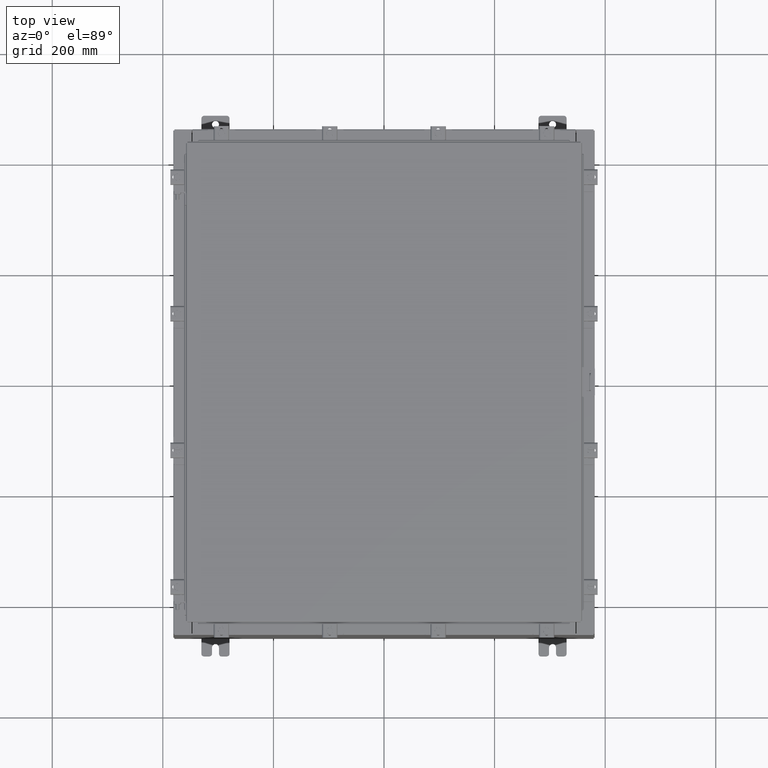
[diagram: clean part render]
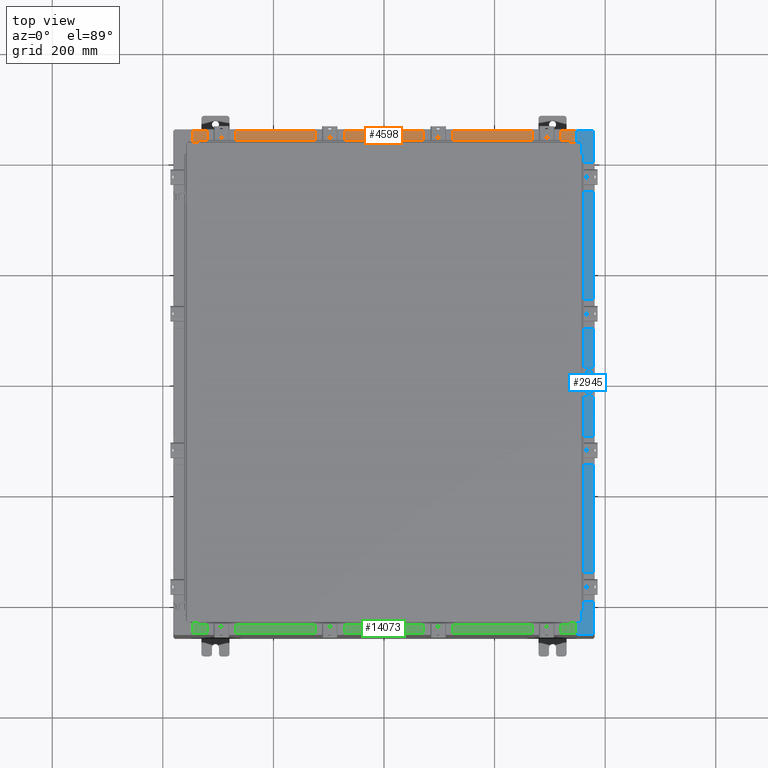
[diagram: same view with three faces highlighted in distinct colors, each labeled with its STEP entity id]
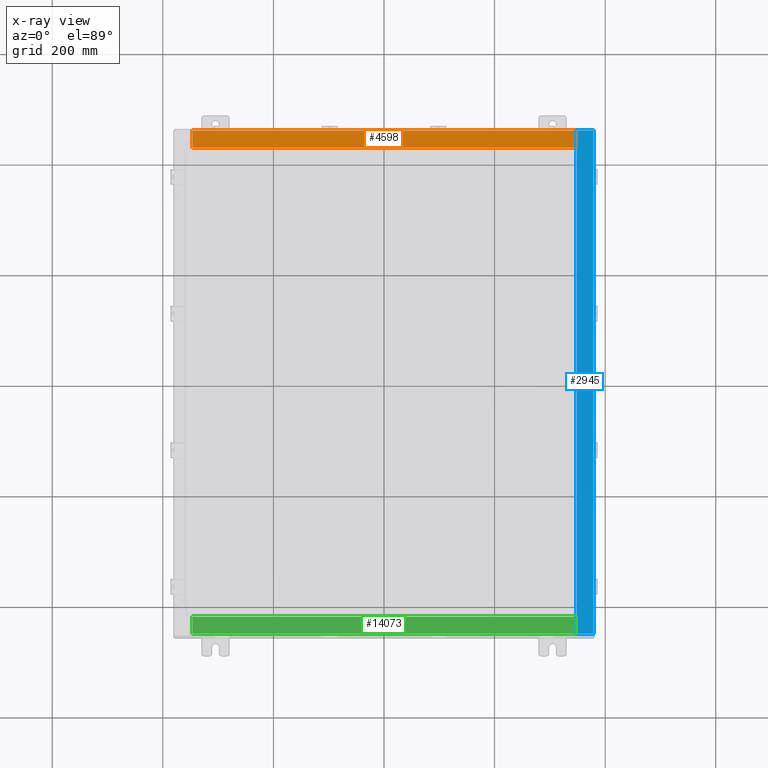
[diagram: x-ray of the same camera — body ghosted, the three highlighted faces saturated]
A machine part, top view with three faces highlighted in distinct colors.
The next image is the same camera in x-ray (body ghosted, the three faces saturated) — at least one of them is partly hidden behind the body in this view.
Their STEP definitions:

[orange] entity #4598 — the highlighted planar face has unit normal (0, 0, 1).
#946 = CARTESIAN_POINT ( 'NONE',  ( 13.63720000000000400, -0.08769999999999829300, 7.999999999999997300 ) ) ;
#965 = ORIENTED_EDGE ( 'NONE', *, *, #7654, .F. ) ;
#3847 = VERTEX_POINT ( 'NONE', #21219 ) ;
#3917 = FACE_OUTER_BOUND ( 'NONE', #11929, .T. ) ;
#4160 = LINE ( 'NONE', #16865, #4741 ) ;
#4598 = ADVANCED_FACE ( 'NONE', ( #3917 ), #19948, .T. ) ;
#4741 = VECTOR ( 'NONE', #7469, 39.37007874015748100 ) ;
#5777 = CARTESIAN_POINT ( 'NONE',  ( 6.299767562217697500E-016, -0.08769999999999862600, 7.999999999999999100 ) ) ;
#6479 = VECTOR ( 'NONE', #19814, 39.37007874015748100 ) ;
#6544 = EDGE_CURVE ( 'NONE', #16171, #6623, #4160, .T. ) ;
#6623 = VERTEX_POINT ( 'NONE', #22757 ) ;
#6863 = DIRECTION ( 'NONE',  ( -0.0000000000000000000, 1.000000000000000000, -3.566381192773190000E-015 ) ) ;
#7059 = LINE ( 'NONE', #8493, #6479 ) ;
#7191 = ORIENTED_EDGE ( 'NONE', *, *, #6544, .F. ) ;
#7413 = VECTOR ( 'NONE', #13340, 39.37007874015748100 ) ;
#7469 = DIRECTION ( 'NONE',  ( -0.0000000000000000000, -1.000000000000000000, 3.566381192773190000E-015 ) ) ;
#7654 = EDGE_CURVE ( 'NONE', #6623, #16523, #7059, .T. ) ;
#8220 = AXIS2_PLACEMENT_3D ( 'NONE', #14251, #21838, #10532 ) ;
#8493 = CARTESIAN_POINT ( 'NONE',  ( 13.63720000000000400, -1.287300000000000300, 8.000000000000003600 ) ) ;
#10532 = DIRECTION ( 'NONE',  ( 0.0000000000000000000, -1.000000000000000000, 3.566381192773190000E-015 ) ) ;
#11929 = EDGE_LOOP ( 'NONE', ( #21449, #965, #7191, #19209 ) ) ;
#13340 = DIRECTION ( 'NONE',  ( -1.000000000000000000, 1.201939398262515800E-016, 8.012929321750060900E-017 ) ) ;
#13622 = LINE ( 'NONE', #5777, #7413 ) ;
#14251 = CARTESIAN_POINT ( 'NONE',  ( 6.405177647445352000E-016, 2.852545452309694500E-014, 7.999999999999999100 ) ) ;
#15876 = EDGE_CURVE ( 'NONE', #16171, #3847, #13622, .T. ) ;
#16171 = VERTEX_POINT ( 'NONE', #946 ) ;
#16523 = VERTEX_POINT ( 'NONE', #22505 ) ;
#16865 = CARTESIAN_POINT ( 'NONE',  ( 13.63720000000000400, -1.300299999999999800, 8.000000000000001800 ) ) ;
#18358 = LINE ( 'NONE', #20053, #22800 ) ;
#19209 = ORIENTED_EDGE ( 'NONE', *, *, #15876, .T. ) ;
#19814 = DIRECTION ( 'NONE',  ( -1.000000000000000000, 0.0000000000000000000, 0.0000000000000000000 ) ) ;
#19948 = PLANE ( 'NONE',  #8220 ) ;
#20053 = CARTESIAN_POINT ( 'NONE',  ( -13.63719999999999800, -0.07469999999999973900, 8.000000000000000000 ) ) ;
#21219 = CARTESIAN_POINT ( 'NONE',  ( -13.63719999999999800, -0.08769999999999862600, 8.000000000000000000 ) ) ;
#21418 = EDGE_CURVE ( 'NONE', #16523, #3847, #18358, .T. ) ;
#21449 = ORIENTED_EDGE ( 'NONE', *, *, #21418, .F. ) ;
#21838 = DIRECTION ( 'NONE',  ( 8.012929321750104000E-017, 3.566381192773190000E-015, 1.000000000000000000 ) ) ;
#22505 = CARTESIAN_POINT ( 'NONE',  ( -13.63719999999999800, -1.287299999999999400, 8.000000000000003600 ) ) ;
#22757 = CARTESIAN_POINT ( 'NONE',  ( 13.63720000000000400, -1.287300000000000300, 8.000000000000001800 ) ) ;
#22800 = VECTOR ( 'NONE', #6863, 39.37007874015748100 ) ;

[blue] entity #2945 — the highlighted planar face has unit normal (-0, 0, -1).
#557 = VECTOR ( 'NONE', #21154, 39.37007874015748100 ) ;
#713 = VERTEX_POINT ( 'NONE', #2100 ) ;
#719 = EDGE_CURVE ( 'NONE', #713, #11560, #14678, .T. ) ;
#1352 = CARTESIAN_POINT ( 'NONE',  ( 13.69970000000005300, 16.63110000000000000, 15.92530000000000900 ) ) ;
#1594 = EDGE_CURVE ( 'NONE', #3296, #18012, #22638, .T. ) ;
#1754 = LINE ( 'NONE', #7932, #557 ) ;
#1859 = VECTOR ( 'NONE', #20742, 39.37007874015748100 ) ;
#2100 = CARTESIAN_POINT ( 'NONE',  ( 13.69970000000005300, -16.63110000000000000, 15.92530000000000900 ) ) ;
#2214 = CARTESIAN_POINT ( 'NONE',  ( 13.71270000000005300, -16.59375000000000000, 15.92530000000001200 ) ) ;
#2248 = CARTESIAN_POINT ( 'NONE',  ( 13.75005000000005300, -16.59375000000000000, 15.92530000000001200 ) ) ;
#2309 = LINE ( 'NONE', #9829, #21802 ) ;
#2650 = VERTEX_POINT ( 'NONE', #10280 ) ;
#2743 = EDGE_LOOP ( 'NONE', ( #15559, #12424, #20900, #17397, #5400, #6149, #16470, #21692, #18025, #23414, #13326, #16943 ) ) ;
#2945 = ADVANCED_FACE ( 'NONE', ( #18445 ), #14887, .F. ) ;
#3296 = VERTEX_POINT ( 'NONE', #21664 ) ;
#3535 = DIRECTION ( 'NONE',  ( 1.000000000000000000, 0.0000000000000000000, 0.0000000000000000000 ) ) ;
#3607 = CARTESIAN_POINT ( 'NONE',  ( 8.545434926991841200E-014, 0.0000000000000000000, 15.92530000000008400 ) ) ;
#3731 = DIRECTION ( 'NONE',  ( -4.219889424208582700E-031, -1.000000000000000000, 2.257460141711997900E-045 ) ) ;
#4054 = EDGE_CURVE ( 'NONE', #23347, #21617, #7746, .T. ) ;
#4624 = CARTESIAN_POINT ( 'NONE',  ( 13.71270000000005300, 16.59375000000000000, 15.92530000000001200 ) ) ;
#5371 = CARTESIAN_POINT ( 'NONE',  ( 13.75005000000005300, -16.61242500000000200, 15.92530000000001200 ) ) ;
#5372 = VERTEX_POINT ( 'NONE', #5730 ) ;
#5400 = ORIENTED_EDGE ( 'NONE', *, *, #24334, .T. ) ;
#5513 = DIRECTION ( 'NONE',  ( -5.349571789159788500E-015, 0.0000000000000000000, -1.000000000000000000 ) ) ;
#5704 = EDGE_CURVE ( 'NONE', #18012, #6535, #20696, .T. ) ;
#5730 = CARTESIAN_POINT ( 'NONE',  ( 13.75005000000005300, -16.59375000000000000, 15.92530000000000900 ) ) ;
#5747 = CARTESIAN_POINT ( 'NONE',  ( 14.91230000000005300, -17.92530000000000000, 15.92530000000000200 ) ) ;
#6149 = ORIENTED_EDGE ( 'NONE', *, *, #11812, .T. ) ;
#6535 = VERTEX_POINT ( 'NONE', #1352 ) ;
#6854 = DIRECTION ( 'NONE',  ( 1.000000000000000000, 1.087045829762337300E-031, -5.349571789159789300E-015 ) ) ;
#7241 = DIRECTION ( 'NONE',  ( 1.000000000000000000, 0.0000000000000000000, 0.0000000000000000000 ) ) ;
#7475 = EDGE_CURVE ( 'NONE', #24269, #9329, #1754, .T. ) ;
#7746 = LINE ( 'NONE', #21960, #17794 ) ;
#7932 = CARTESIAN_POINT ( 'NONE',  ( 13.71270000000005300, -16.59375000000000000, 15.92530000000001200 ) ) ;
#8061 = CARTESIAN_POINT ( 'NONE',  ( 8.545434926991841200E-014, 17.92530000000000000, 15.92530000000008400 ) ) ;
#8664 = CARTESIAN_POINT ( 'NONE',  ( 13.75005000000005300, -16.63110000000000000, 15.92530000000000900 ) ) ;
#8953 = CARTESIAN_POINT ( 'NONE',  ( 13.75005000000005300, 16.63110000000000000, 15.92530000000000900 ) ) ;
#9329 = VERTEX_POINT ( 'NONE', #11291 ) ;
#9829 = CARTESIAN_POINT ( 'NONE',  ( 13.69970000000005300, -5.781121914483018700E-030, 15.92530000000000900 ) ) ;
#9920 = EDGE_CURVE ( 'NONE', #11560, #5372, #14053, .T. ) ;
#9963 = DIRECTION ( 'NONE',  ( -1.000000000000000000, 4.861730685829018000E-063, 5.349571789159789300E-015 ) ) ;
#10280 = CARTESIAN_POINT ( 'NONE',  ( 14.91230000000005300, 17.92530000000000000, 15.92530000000000200 ) ) ;
#10651 = CARTESIAN_POINT ( 'NONE',  ( 13.69970000000005300, 17.92530000000000000, 15.92530000000000900 ) ) ;
#11291 = CARTESIAN_POINT ( 'NONE',  ( 13.71270000000005300, 16.59375000000000000, 15.92530000000001200 ) ) ;
#11560 = VERTEX_POINT ( 'NONE', #8664 ) ;
#11812 = EDGE_CURVE ( 'NONE', #18647, #6535, #24345, .T. ) ;
#12270 = CARTESIAN_POINT ( 'NONE',  ( 13.75005000000005300, 16.61242500000000200, 15.92530000000001200 ) ) ;
#12424 = ORIENTED_EDGE ( 'NONE', *, *, #19044, .T. ) ;
#13313 = VECTOR ( 'NONE', #21590, 39.37007874015748100 ) ;
#13326 = ORIENTED_EDGE ( 'NONE', *, *, #21131, .F. ) ;
#14053 = CIRCLE ( 'NONE', #16983, 0.01867499999999949400 ) ;
#14090 = VECTOR ( 'NONE', #9963, 39.37007874015748100 ) ;
#14091 = VECTOR ( 'NONE', #23005, 39.37007874015748100 ) ;
#14664 = AXIS2_PLACEMENT_3D ( 'NONE', #12270, #18557, #3535 ) ;
#14678 = LINE ( 'NONE', #21094, #14091 ) ;
#14783 = EDGE_CURVE ( 'NONE', #2650, #21617, #21949, .T. ) ;
#14815 = LINE ( 'NONE', #2248, #24306 ) ;
#14887 = PLANE ( 'NONE',  #17376 ) ;
#15066 = VECTOR ( 'NONE', #21624, 39.37007874015748100 ) ;
#15559 = ORIENTED_EDGE ( 'NONE', *, *, #719, .F. ) ;
#16135 = EDGE_CURVE ( 'NONE', #9329, #3296, #18343, .T. ) ;
#16470 = ORIENTED_EDGE ( 'NONE', *, *, #5704, .F. ) ;
#16807 = CARTESIAN_POINT ( 'NONE',  ( 13.69970000000005300, -5.781121914483018700E-030, 15.92530000000000900 ) ) ;
#16891 = CARTESIAN_POINT ( 'NONE',  ( 14.91230000000005300, -17.92530000000000000, 15.92530000000000200 ) ) ;
#16943 = ORIENTED_EDGE ( 'NONE', *, *, #9920, .F. ) ;
#16983 = AXIS2_PLACEMENT_3D ( 'NONE', #5371, #18556, #7241 ) ;
#17376 = AXIS2_PLACEMENT_3D ( 'NONE', #3607, #5513, #18709 ) ;
#17397 = ORIENTED_EDGE ( 'NONE', *, *, #14783, .F. ) ;
#17794 = VECTOR ( 'NONE', #6854, 39.37007874015748100 ) ;
#18012 = VERTEX_POINT ( 'NONE', #8953 ) ;
#18025 = ORIENTED_EDGE ( 'NONE', *, *, #16135, .F. ) ;
#18343 = LINE ( 'NONE', #4624, #13313 ) ;
#18445 = FACE_OUTER_BOUND ( 'NONE', #2743, .T. ) ;
#18556 = DIRECTION ( 'NONE',  ( 5.349571789159788500E-015, 0.0000000000000000000, 1.000000000000000000 ) ) ;
#18557 = DIRECTION ( 'NONE',  ( 5.349571789159788500E-015, 0.0000000000000000000, 1.000000000000000000 ) ) ;
#18647 = VERTEX_POINT ( 'NONE', #10651 ) ;
#18709 = DIRECTION ( 'NONE',  ( -1.000000000000000000, 0.0000000000000000000, 5.349571789159788500E-015 ) ) ;
#19044 = EDGE_CURVE ( 'NONE', #713, #23347, #2309, .T. ) ;
#19314 = VECTOR ( 'NONE', #3731, 39.37007874015748100 ) ;
#20696 = LINE ( 'NONE', #23553, #15066 ) ;
#20742 = DIRECTION ( 'NONE',  ( -0.0000000000000000000, -1.000000000000000000, -0.0000000000000000000 ) ) ;
#20900 = ORIENTED_EDGE ( 'NONE', *, *, #4054, .T. ) ;
#21069 = DIRECTION ( 'NONE',  ( -1.000000000000000000, 0.0000000000000000000, 0.0000000000000000000 ) ) ;
#21094 = CARTESIAN_POINT ( 'NONE',  ( 13.69970000000005300, -16.63110000000000000, 15.92530000000001100 ) ) ;
#21131 = EDGE_CURVE ( 'NONE', #5372, #24269, #14815, .T. ) ;
#21135 = DIRECTION ( 'NONE',  ( -4.219889424208582700E-031, -1.000000000000000000, 2.257460141711997900E-045 ) ) ;
#21154 = DIRECTION ( 'NONE',  ( -0.0000000000000000000, 1.000000000000000000, -0.0000000000000000000 ) ) ;
#21590 = DIRECTION ( 'NONE',  ( 1.000000000000000000, 0.0000000000000000000, 0.0000000000000000000 ) ) ;
#21617 = VERTEX_POINT ( 'NONE', #16891 ) ;
#21624 = DIRECTION ( 'NONE',  ( -1.000000000000000000, 0.0000000000000000000, -4.340572780400098900E-014 ) ) ;
#21664 = CARTESIAN_POINT ( 'NONE',  ( 13.75005000000005300, 16.59375000000000000, 15.92530000000000900 ) ) ;
#21692 = ORIENTED_EDGE ( 'NONE', *, *, #1594, .F. ) ;
#21802 = VECTOR ( 'NONE', #21135, 39.37007874015748100 ) ;
#21949 = LINE ( 'NONE', #5747, #1859 ) ;
#21960 = CARTESIAN_POINT ( 'NONE',  ( 8.545434926991841200E-014, -17.92530000000000000, 15.92530000000008400 ) ) ;
#22397 = CARTESIAN_POINT ( 'NONE',  ( 13.69970000000005300, -17.92530000000000000, 15.92530000000000900 ) ) ;
#22638 = CIRCLE ( 'NONE', #14664, 0.01867499999999949400 ) ;
#23005 = DIRECTION ( 'NONE',  ( 1.000000000000000000, 0.0000000000000000000, 4.340572780400098900E-014 ) ) ;
#23347 = VERTEX_POINT ( 'NONE', #22397 ) ;
#23414 = ORIENTED_EDGE ( 'NONE', *, *, #7475, .F. ) ;
#23553 = CARTESIAN_POINT ( 'NONE',  ( 13.75005000000005300, 16.63110000000000000, 15.92530000000001200 ) ) ;
#24169 = LINE ( 'NONE', #8061, #14090 ) ;
#24269 = VERTEX_POINT ( 'NONE', #2214 ) ;
#24306 = VECTOR ( 'NONE', #21069, 39.37007874015748100 ) ;
#24334 = EDGE_CURVE ( 'NONE', #2650, #18647, #24169, .T. ) ;
#24345 = LINE ( 'NONE', #16807, #19314 ) ;

[green] entity #14073 — the highlighted planar face has unit normal (-0, -0, 1).
#274 = VERTEX_POINT ( 'NONE', #3125 ) ;
#1562 = EDGE_CURVE ( 'NONE', #11023, #10608, #13159, .T. ) ;
#2536 = DIRECTION ( 'NONE',  ( -1.000000000000000000, 0.0000000000000000000, 0.0000000000000000000 ) ) ;
#2887 = CARTESIAN_POINT ( 'NONE',  ( 6.299767562217697500E-016, -0.08769999999999862600, 7.999999999999999100 ) ) ;
#3125 = CARTESIAN_POINT ( 'NONE',  ( 13.63720000000000400, -0.08769999999999829300, 7.999999999999997300 ) ) ;
#4522 = LINE ( 'NONE', #2887, #13933 ) ;
#5679 = CARTESIAN_POINT ( 'NONE',  ( 13.63720000000000400, -1.300299999999999800, 8.000000000000001800 ) ) ;
#5941 = ORIENTED_EDGE ( 'NONE', *, *, #6262, .F. ) ;
#6010 = ORIENTED_EDGE ( 'NONE', *, *, #6566, .F. ) ;
#6262 = EDGE_CURVE ( 'NONE', #11490, #11023, #13868, .T. ) ;
#6566 = EDGE_CURVE ( 'NONE', #274, #11490, #8539, .T. ) ;
#6879 = CARTESIAN_POINT ( 'NONE',  ( -13.63719999999999800, -1.287299999999999400, 8.000000000000003600 ) ) ;
#7545 = DIRECTION ( 'NONE',  ( -0.0000000000000000000, -1.000000000000000000, 3.566381192773190000E-015 ) ) ;
#7555 = CARTESIAN_POINT ( 'NONE',  ( 6.405177647445352000E-016, 2.852545452309694500E-014, 7.999999999999999100 ) ) ;
#7951 = VECTOR ( 'NONE', #7545, 39.37007874015748100 ) ;
#8539 = LINE ( 'NONE', #5679, #7951 ) ;
#8735 = VECTOR ( 'NONE', #21345, 39.37007874015748100 ) ;
#8848 = VECTOR ( 'NONE', #2536, 39.37007874015748100 ) ;
#9198 = CARTESIAN_POINT ( 'NONE',  ( -13.63719999999999800, -0.08769999999999862600, 8.000000000000000000 ) ) ;
#9479 = DIRECTION ( 'NONE',  ( 8.012929321750104000E-017, 3.566381192773190000E-015, 1.000000000000000000 ) ) ;
#10391 = DIRECTION ( 'NONE',  ( -1.000000000000000000, 1.201939398262515800E-016, 8.012929321750060900E-017 ) ) ;
#10608 = VERTEX_POINT ( 'NONE', #9198 ) ;
#11023 = VERTEX_POINT ( 'NONE', #6879 ) ;
#11490 = VERTEX_POINT ( 'NONE', #14108 ) ;
#12651 = ORIENTED_EDGE ( 'NONE', *, *, #1562, .F. ) ;
#13159 = LINE ( 'NONE', #21680, #8735 ) ;
#13868 = LINE ( 'NONE', #15706, #8848 ) ;
#13933 = VECTOR ( 'NONE', #10391, 39.37007874015748100 ) ;
#14073 = ADVANCED_FACE ( 'NONE', ( #19910 ), #18876, .T. ) ;
#14108 = CARTESIAN_POINT ( 'NONE',  ( 13.63720000000000400, -1.287300000000000300, 8.000000000000001800 ) ) ;
#15544 = EDGE_CURVE ( 'NONE', #274, #10608, #4522, .T. ) ;
#15706 = CARTESIAN_POINT ( 'NONE',  ( 13.63720000000000400, -1.287300000000000300, 8.000000000000003600 ) ) ;
#18876 = PLANE ( 'NONE',  #22434 ) ;
#19179 = EDGE_LOOP ( 'NONE', ( #12651, #5941, #6010, #23872 ) ) ;
#19910 = FACE_OUTER_BOUND ( 'NONE', #19179, .T. ) ;
#21345 = DIRECTION ( 'NONE',  ( -0.0000000000000000000, 1.000000000000000000, -3.566381192773190000E-015 ) ) ;
#21680 = CARTESIAN_POINT ( 'NONE',  ( -13.63719999999999800, -0.07469999999999973900, 8.000000000000000000 ) ) ;
#22434 = AXIS2_PLACEMENT_3D ( 'NONE', #7555, #9479, #22686 ) ;
#22686 = DIRECTION ( 'NONE',  ( 0.0000000000000000000, -1.000000000000000000, 3.566381192773190000E-015 ) ) ;
#23872 = ORIENTED_EDGE ( 'NONE', *, *, #15544, .T. ) ;